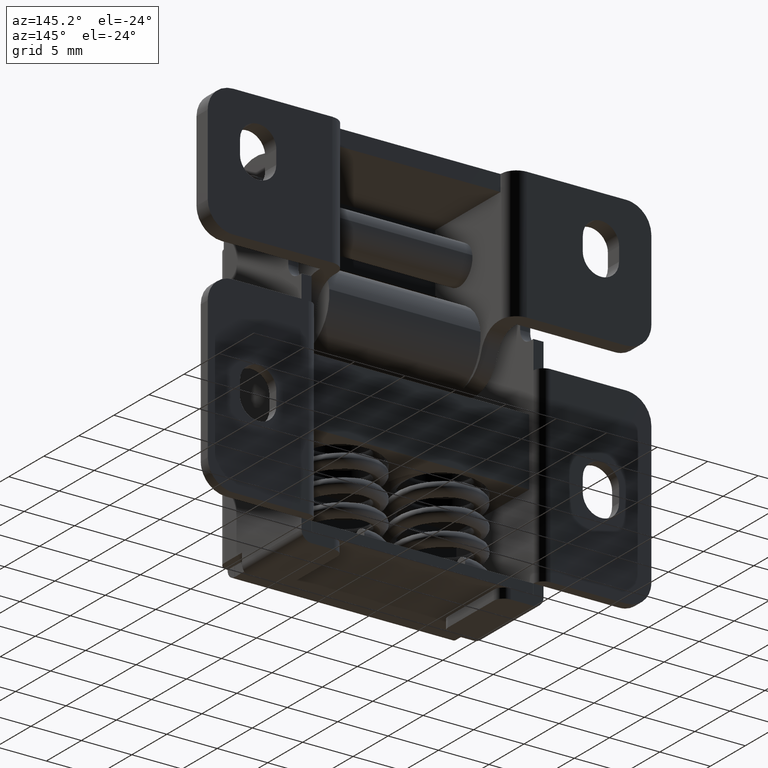
[diagram: clean part render]
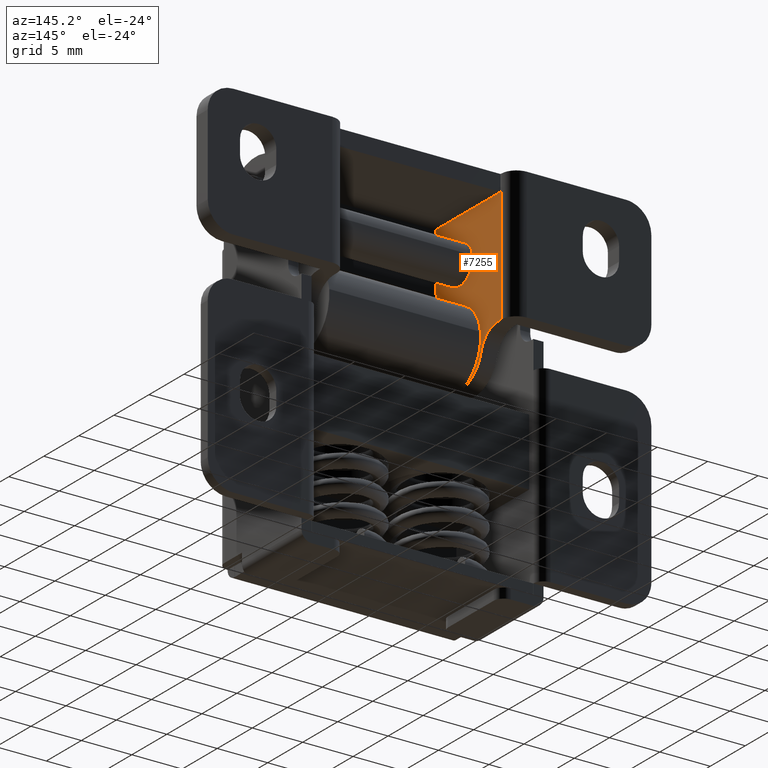
[diagram: same view with one face highlighted and labeled with its STEP entity id]
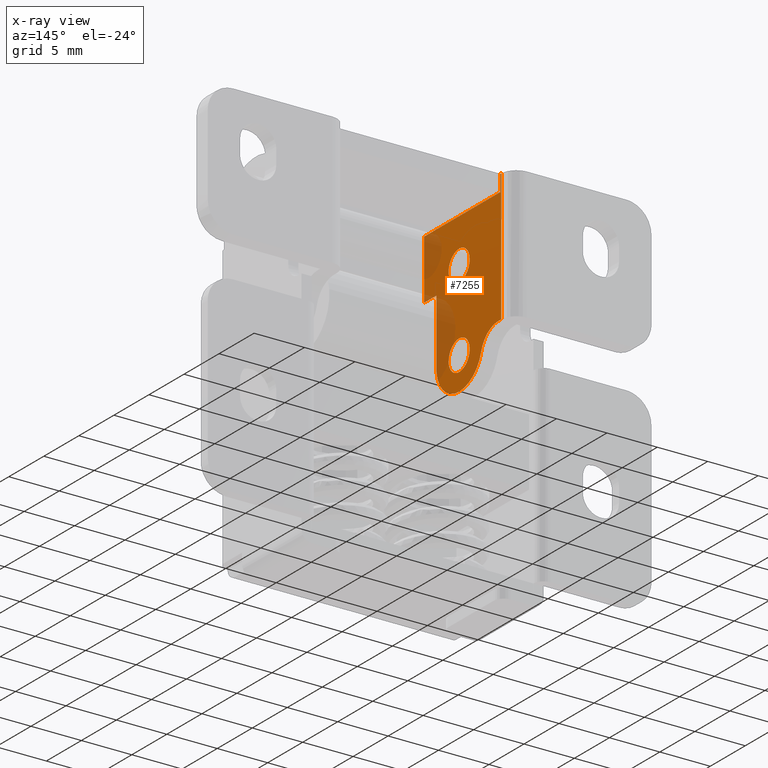
[diagram: x-ray of the same camera — body ghosted, the highlighted face saturated]
A machine part, auxiliary view. The second image highlights one B-rep face of the part: STEP entity #7255.
The next image is the same camera in x-ray: the body ghosted, the highlighted face saturated — about 18% of this face is hidden behind the body in this view.
In plain terms, the highlighted face is a freeform B-spline surface patch.
Its self-contained STEP definition (entity closure, byte-faithful):
#4843=CARTESIAN_POINT('',(-8.149994000000001,-1.530758E-017,-6.500000000000001));
#4844=VERTEX_POINT('',#4843);
#4845=CARTESIAN_POINT('',(-8.149994000000001,1.488399320726632,-7.813807996786916));
#4846=VERTEX_POINT('',#4845);
#4847=CARTESIAN_POINT('',(-8.149994000000001,-1.530758E-017,-6.500000000000001));
#4848=CARTESIAN_POINT('',(-8.149994000000001,1.324047900057982,-6.500000000000003));
#4849=CARTESIAN_POINT('',(-8.149994000000001,1.488399320726632,-7.813807996786916));
#4857=(BOUNDED_CURVE()B_SPLINE_CURVE(2,(#4847,#4848,#4849),.UNSPECIFIED.,.F.,.U.)B_SPLINE_CURVE_WITH_KNOTS((3,3),(0.0,0.228526071008147),.UNSPECIFIED.)CURVE()GEOMETRIC_REPRESENTATION_ITEM()RATIONAL_B_SPLINE_CURVE((1.0,0.732265053918529,0.954005430233670))REPRESENTATION_ITEM(''));
#4858=EDGE_CURVE('',#4844,#4846,#4857,.T.);
#4860=CARTESIAN_POINT('',(-8.149994000000001,-1.499942884594848,-8.013089803408946));
#4861=VERTEX_POINT('',#4860);
#4862=CARTESIAN_POINT('',(-8.149994000000001,-1.499942884594849,-8.013089803408946));
#4863=CARTESIAN_POINT('',(-8.149994000000001,-1.500000000000000,-8.006545026392447));
#4864=CARTESIAN_POINT('',(-8.149994000000001,-1.500000000000000,-8.0));
#4865=CARTESIAN_POINT('',(-8.149994000000001,-1.500000000000000,-6.500000000000003));
#4866=CARTESIAN_POINT('',(-8.149994000000001,-1.530758E-017,-6.500000000000001));
#4874=(BOUNDED_CURVE()B_SPLINE_CURVE(2,(#4862,#4863,#4864,#4865,#4866),.UNSPECIFIED.,.F.,.U.)B_SPLINE_CURVE_WITH_KNOTS((3,2,3),(0.748460105627109,0.750000000000000,1.0),.UNSPECIFIED.)CURVE()GEOMETRIC_REPRESENTATION_ITEM()RATIONAL_B_SPLINE_CURVE((0.996414028012686,0.998195901521965,1.0,0.707106781186548,1.0))REPRESENTATION_ITEM(''));
#4875=EDGE_CURVE('',#4861,#4844,#4874,.T.);
#4946=CARTESIAN_POINT('',(-8.149994000000001,-1.530758E-017,-9.500000000000000));
#4947=VERTEX_POINT('',#4946);
#4948=CARTESIAN_POINT('',(-8.149994000000001,1.488399320726632,-7.813807996786916));
#4949=CARTESIAN_POINT('',(-8.149994000000001,1.500000000000000,-7.906542608605325));
#4950=CARTESIAN_POINT('',(-8.149994000000001,1.500000000000000,-8.0));
#4951=CARTESIAN_POINT('',(-8.149994000000001,1.500000000000000,-9.500000000000000));
#4952=CARTESIAN_POINT('',(-8.149994000000001,-1.530758E-017,-9.500000000000000));
#4960=(BOUNDED_CURVE()B_SPLINE_CURVE(2,(#4948,#4949,#4950,#4951,#4952),.UNSPECIFIED.,.F.,.U.)B_SPLINE_CURVE_WITH_KNOTS((3,2,3),(0.228526071008147,0.250000000000000,0.500000000000000),.UNSPECIFIED.)CURVE()GEOMETRIC_REPRESENTATION_ITEM()RATIONAL_B_SPLINE_CURVE((0.954005430233670,0.974841727268018,1.0,0.707106781186548,1.0))REPRESENTATION_ITEM(''));
#4961=EDGE_CURVE('',#4846,#4947,#4960,.T.);
#4995=CARTESIAN_POINT('',(-8.149994000000001,-1.530758E-017,-9.500000000000000));
#4996=CARTESIAN_POINT('',(-8.149994000000001,-1.486966815572473,-9.500000000000000));
#4997=CARTESIAN_POINT('',(-8.149994000000001,-1.499942884594848,-8.013089803408946));
#5005=(BOUNDED_CURVE()B_SPLINE_CURVE(2,(#4995,#4996,#4997),.UNSPECIFIED.,.F.,.U.)B_SPLINE_CURVE_WITH_KNOTS((3,3),(0.500000000000000,0.748460105627109),.UNSPECIFIED.)CURVE()GEOMETRIC_REPRESENTATION_ITEM()RATIONAL_B_SPLINE_CURVE((1.0,0.708910879664583,0.996414028012685))REPRESENTATION_ITEM(''));
#5006=EDGE_CURVE('',#4947,#4861,#5005,.T.);
#5215=CARTESIAN_POINT('',(-8.149994000000001,0.0,1.500000000000000));
#5216=VERTEX_POINT('',#5215);
#5217=CARTESIAN_POINT('',(-8.149994000000000,-1.488399320726632,0.186192003213085));
#5218=VERTEX_POINT('',#5217);
#5219=CARTESIAN_POINT('',(-8.149994000000001,0.0,1.500000000000000));
#5220=CARTESIAN_POINT('',(-8.149994000000001,-1.324047900057982,1.500000000000000));
#5221=CARTESIAN_POINT('',(-8.149994000000000,-1.488399320726632,0.186192003213085));
#5229=(BOUNDED_CURVE()B_SPLINE_CURVE(2,(#5219,#5220,#5221),.UNSPECIFIED.,.F.,.U.)B_SPLINE_CURVE_WITH_KNOTS((3,3),(0.0,0.228526071008147),.UNSPECIFIED.)CURVE()GEOMETRIC_REPRESENTATION_ITEM()RATIONAL_B_SPLINE_CURVE((1.0,0.732265053918529,0.954005430233670))REPRESENTATION_ITEM(''));
#5230=EDGE_CURVE('',#5216,#5218,#5229,.T.);
#5271=CARTESIAN_POINT('',(-8.149994000000000,1.499942884594848,-0.013089803408946));
#5272=VERTEX_POINT('',#5271);
#5278=CARTESIAN_POINT('',(-8.149994000000000,1.499942884594848,-0.013089803408946));
#5279=CARTESIAN_POINT('',(-8.149994000000003,1.500000000000000,-0.006545026392446));
#5280=CARTESIAN_POINT('',(-8.149994000000001,1.500000000000000,0.0));
#5281=CARTESIAN_POINT('',(-8.149994000000001,1.500000000000000,1.500000000000000));
#5282=CARTESIAN_POINT('',(-8.149994000000001,0.0,1.500000000000000));
#5290=(BOUNDED_CURVE()B_SPLINE_CURVE(2,(#5278,#5279,#5280,#5281,#5282),.UNSPECIFIED.,.F.,.U.)B_SPLINE_CURVE_WITH_KNOTS((3,2,3),(0.748460105627109,0.750000000000000,1.0),.UNSPECIFIED.)CURVE()GEOMETRIC_REPRESENTATION_ITEM()RATIONAL_B_SPLINE_CURVE((0.996414028012686,0.998195901521965,1.0,0.707106781186548,1.0))REPRESENTATION_ITEM(''));
#5291=EDGE_CURVE('',#5272,#5216,#5290,.T.);
#5318=CARTESIAN_POINT('',(-8.149994000000001,0.0,-1.500000000000000));
#5319=VERTEX_POINT('',#5318);
#5320=CARTESIAN_POINT('',(-8.149994000000000,-1.488399320726632,0.186192003213085));
#5321=CARTESIAN_POINT('',(-8.149994000000001,-1.500000000000000,0.093457391394675));
#5322=CARTESIAN_POINT('',(-8.149994000000001,-1.500000000000000,0.0));
#5323=CARTESIAN_POINT('',(-8.149994000000001,-1.500000000000000,-1.500000000000000));
#5324=CARTESIAN_POINT('',(-8.149994000000001,0.0,-1.500000000000000));
#5332=(BOUNDED_CURVE()B_SPLINE_CURVE(2,(#5320,#5321,#5322,#5323,#5324),.UNSPECIFIED.,.F.,.U.)B_SPLINE_CURVE_WITH_KNOTS((3,2,3),(0.228526071008147,0.250000000000000,0.500000000000000),.UNSPECIFIED.)CURVE()GEOMETRIC_REPRESENTATION_ITEM()RATIONAL_B_SPLINE_CURVE((0.954005430233670,0.974841727268018,1.0,0.707106781186548,1.0))REPRESENTATION_ITEM(''));
#5333=EDGE_CURVE('',#5218,#5319,#5332,.T.);
#5335=CARTESIAN_POINT('',(-8.149994000000001,0.0,-1.500000000000000));
#5336=CARTESIAN_POINT('',(-8.149994000000001,1.486966815572473,-1.500000000000000));
#5337=CARTESIAN_POINT('',(-8.149994000000000,1.499942884594848,-0.013089803408946));
#5345=(BOUNDED_CURVE()B_SPLINE_CURVE(2,(#5335,#5336,#5337),.UNSPECIFIED.,.F.,.U.)B_SPLINE_CURVE_WITH_KNOTS((3,3),(0.500000000000000,0.748460105627109),.UNSPECIFIED.)CURVE()GEOMETRIC_REPRESENTATION_ITEM()RATIONAL_B_SPLINE_CURVE((1.0,0.708910879664583,0.996414028012685))REPRESENTATION_ITEM(''));
#5346=EDGE_CURVE('',#5319,#5272,#5345,.T.);
#5626=CARTESIAN_POINT('',(-8.149993999999911,-5.0,4.400000000000000));
#5627=VERTEX_POINT('',#5626);
#5729=CARTESIAN_POINT('',(-8.149994000000001,5.900008999999900,6.0));
#5730=VERTEX_POINT('',#5729);
#5899=CARTESIAN_POINT('',(-8.149993999999911,6.0,-7.0));
#5900=VERTEX_POINT('',#5899);
#5921=CARTESIAN_POINT('',(-8.149993999999911,6.0,6.0));
#5922=VERTEX_POINT('',#5921);
#5936=CARTESIAN_POINT('',(-8.149993999999911,6.0,-7.0));
#5937=CARTESIAN_POINT('',(-8.149993999999911,6.0,6.0));
#5938=QUASI_UNIFORM_CURVE('',1,(#5936,#5937),.UNSPECIFIED.,.F.,.U.);
#5939=EDGE_CURVE('',#5900,#5922,#5938,.T.);
#5949=CARTESIAN_POINT('',(-8.149993999999911,5.900008999999900,4.400000000000000));
#5950=VERTEX_POINT('',#5949);
#5951=CARTESIAN_POINT('',(-8.149994000000001,5.900008999999900,6.0));
#5952=CARTESIAN_POINT('',(-8.149993999999911,5.900008999999900,4.400000000000000));
#5953=QUASI_UNIFORM_CURVE('',1,(#5951,#5952),.UNSPECIFIED.,.F.,.U.);
#5954=EDGE_CURVE('',#5730,#5950,#5953,.T.);
#6019=CARTESIAN_POINT('',(-8.149994000000001,-3.250000000000000,-8.0));
#6020=VERTEX_POINT('',#6019);
#6026=CARTESIAN_POINT('',(-8.149994000000001,-3.250000000000000,-1.500000000000000));
#6027=VERTEX_POINT('',#6026);
#6028=CARTESIAN_POINT('',(-8.149994000000001,-3.250000000000000,-1.500000000000000));
#6029=CARTESIAN_POINT('',(-8.149994000000001,-3.250000000000000,-8.0));
#6030=QUASI_UNIFORM_CURVE('',1,(#6028,#6029),.UNSPECIFIED.,.F.,.U.);
#6031=EDGE_CURVE('',#6027,#6020,#6030,.T.);
#6064=CARTESIAN_POINT('',(-8.149994000000001,5.550900827793631,-7.0));
#6065=VERTEX_POINT('',#6064);
#6071=CARTESIAN_POINT('',(-8.149994000000001,3.137465685274660,-8.847826086956520));
#6072=VERTEX_POINT('',#6071);
#6073=CARTESIAN_POINT('',(-8.149994000000001,3.137465685274661,-8.847826086956522));
#6074=CARTESIAN_POINT('',(-8.149994000000001,3.636797094071690,-6.999999999999999));
#6075=CARTESIAN_POINT('',(-8.149994000000001,5.550900827793631,-6.999999999999999));
#6083=(BOUNDED_CURVE()B_SPLINE_CURVE(2,(#6073,#6074,#6075),.UNSPECIFIED.,.F.,.U.)CURVE()GEOMETRIC_REPRESENTATION_ITEM()QUASI_UNIFORM_CURVE()RATIONAL_B_SPLINE_CURVE((1.0,0.793999233380421,1.0))REPRESENTATION_ITEM(''));
#6084=EDGE_CURVE('',#6072,#6065,#6083,.T.);
#6143=CARTESIAN_POINT('',(-8.149994000000001,3.137465685274660,-8.847826086956520));
#6144=CARTESIAN_POINT('',(-8.149994000000001,2.394738025097161,-11.596364476092871));
#6145=CARTESIAN_POINT('',(-8.149994000000001,-0.427630987451421,-11.221743586719979));
#6146=CARTESIAN_POINT('',(-8.149994000000001,-3.250000000000000,-10.847122697347091));
#6147=CARTESIAN_POINT('',(-8.149994000000001,-3.250000000000000,-8.0));
#6155=(BOUNDED_CURVE()B_SPLINE_CURVE(2,(#6143,#6144,#6145,#6146,#6147),.UNSPECIFIED.,.F.,.U.)B_SPLINE_CURVE_WITH_KNOTS((3,2,3),(0.0,0.500000000000000,1.0),.UNSPECIFIED.)CURVE()GEOMETRIC_REPRESENTATION_ITEM()RATIONAL_B_SPLINE_CURVE((1.0,0.752189725192277,1.0,0.752189725192277,1.0))REPRESENTATION_ITEM(''));
#6156=EDGE_CURVE('',#6072,#6020,#6155,.T.);
#6897=CARTESIAN_POINT('',(-8.149993999999911,-5.0,-1.500000000000000));
#6898=VERTEX_POINT('',#6897);
#6899=CARTESIAN_POINT('',(-8.149993999999911,-5.0,-1.500000000000000));
#6900=CARTESIAN_POINT('',(-8.149994000000001,-3.250000000000000,-1.500000000000000));
#6901=QUASI_UNIFORM_CURVE('',1,(#6899,#6900),.UNSPECIFIED.,.F.,.U.);
#6902=EDGE_CURVE('',#6898,#6027,#6901,.T.);
#6925=CARTESIAN_POINT('',(-8.149993999999911,-5.0,4.400000000000000));
#6926=CARTESIAN_POINT('',(-8.149993999999911,5.900008999999900,4.400000000000000));
#6927=QUASI_UNIFORM_CURVE('',1,(#6925,#6926),.UNSPECIFIED.,.F.,.U.);
#6928=EDGE_CURVE('',#5627,#5950,#6927,.T.);
#6998=CARTESIAN_POINT('',(-8.149993999999911,6.0,-7.0));
#6999=CARTESIAN_POINT('',(-8.149994000000001,5.550900827793631,-7.0));
#7000=QUASI_UNIFORM_CURVE('',1,(#6998,#6999),.UNSPECIFIED.,.F.,.U.);
#7001=EDGE_CURVE('',#5900,#6065,#7000,.T.);
#7218=CARTESIAN_POINT('',(-8.149993999999911,-5.549449978679866,-12.109421612131110));
#7219=CARTESIAN_POINT('',(-8.149993999999911,-5.549449978679866,6.861532512860632));
#7220=CARTESIAN_POINT('',(-8.149993999999911,6.549450273722859,-12.109421612131110));
#7221=CARTESIAN_POINT('',(-8.149993999999911,6.549450273722859,6.861532512860632));
#7222=B_SPLINE_SURFACE_WITH_KNOTS('',1,1,((#7218,#7220),(#7219,#7221)),.UNSPECIFIED.,.F.,.F.,.U.,(2,2),(2,2),(0.0,18.970954124991739),(0.0,12.098900252402730),.UNSPECIFIED.);
#7223=ORIENTED_EDGE('',*,*,#7001,.F.);
#7224=ORIENTED_EDGE('',*,*,#5939,.T.);
#7225=CARTESIAN_POINT('',(-8.149993999999911,6.0,6.0));
#7226=CARTESIAN_POINT('',(-8.149994000000001,5.900008999999900,6.0));
#7227=QUASI_UNIFORM_CURVE('',1,(#7225,#7226),.UNSPECIFIED.,.F.,.U.);
#7228=EDGE_CURVE('',#5922,#5730,#7227,.T.);
#7229=ORIENTED_EDGE('',*,*,#7228,.T.);
#7230=ORIENTED_EDGE('',*,*,#5954,.T.);
#7231=ORIENTED_EDGE('',*,*,#6928,.F.);
#7232=CARTESIAN_POINT('',(-8.149993999999911,-5.0,4.400000000000000));
#7233=CARTESIAN_POINT('',(-8.149993999999911,-5.0,-1.500000000000000));
#7234=QUASI_UNIFORM_CURVE('',1,(#7232,#7233),.UNSPECIFIED.,.F.,.U.);
#7235=EDGE_CURVE('',#5627,#6898,#7234,.T.);
#7236=ORIENTED_EDGE('',*,*,#7235,.T.);
#7237=ORIENTED_EDGE('',*,*,#6902,.T.);
#7238=ORIENTED_EDGE('',*,*,#6031,.T.);
#7239=ORIENTED_EDGE('',*,*,#6156,.F.);
#7240=ORIENTED_EDGE('',*,*,#6084,.T.);
#7241=EDGE_LOOP('',(#7223,#7224,#7229,#7230,#7231,#7236,#7237,#7238,#7239,#7240));
#7242=FACE_OUTER_BOUND('',#7241,.T.);
#7243=ORIENTED_EDGE('',*,*,#5346,.F.);
#7244=ORIENTED_EDGE('',*,*,#5333,.F.);
#7245=ORIENTED_EDGE('',*,*,#5230,.F.);
#7246=ORIENTED_EDGE('',*,*,#5291,.F.);
#7247=EDGE_LOOP('',(#7243,#7244,#7245,#7246));
#7248=FACE_BOUND('',#7247,.T.);
#7249=ORIENTED_EDGE('',*,*,#5006,.T.);
#7250=ORIENTED_EDGE('',*,*,#4875,.T.);
#7251=ORIENTED_EDGE('',*,*,#4858,.T.);
#7252=ORIENTED_EDGE('',*,*,#4961,.T.);
#7253=EDGE_LOOP('',(#7249,#7250,#7251,#7252));
#7254=FACE_BOUND('',#7253,.T.);
#7255=ADVANCED_FACE('',(#7242,#7248,#7254),#7222,.F.);